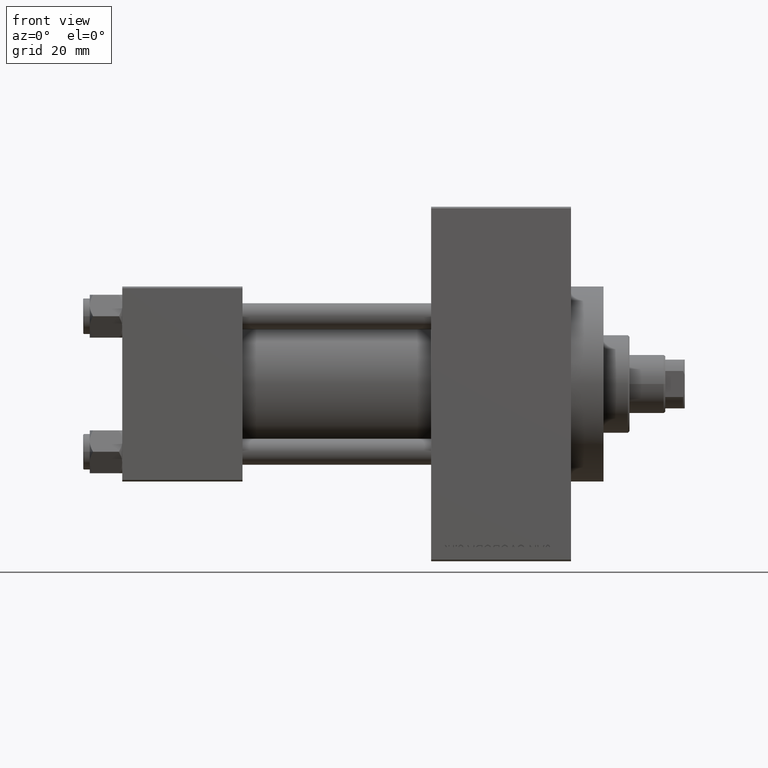
[diagram: clean part render]
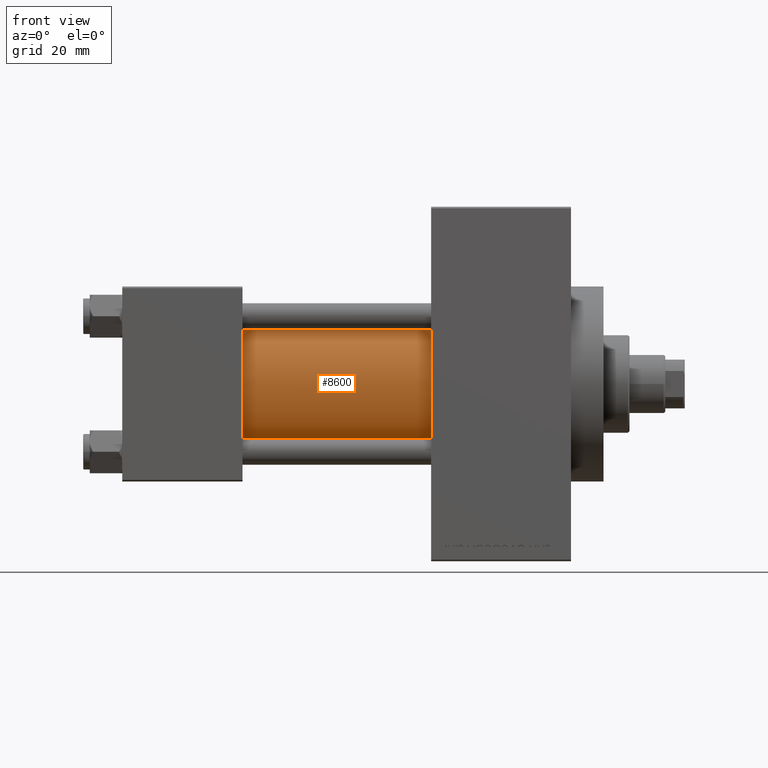
[diagram: same view with one face highlighted and labeled with its STEP entity id]
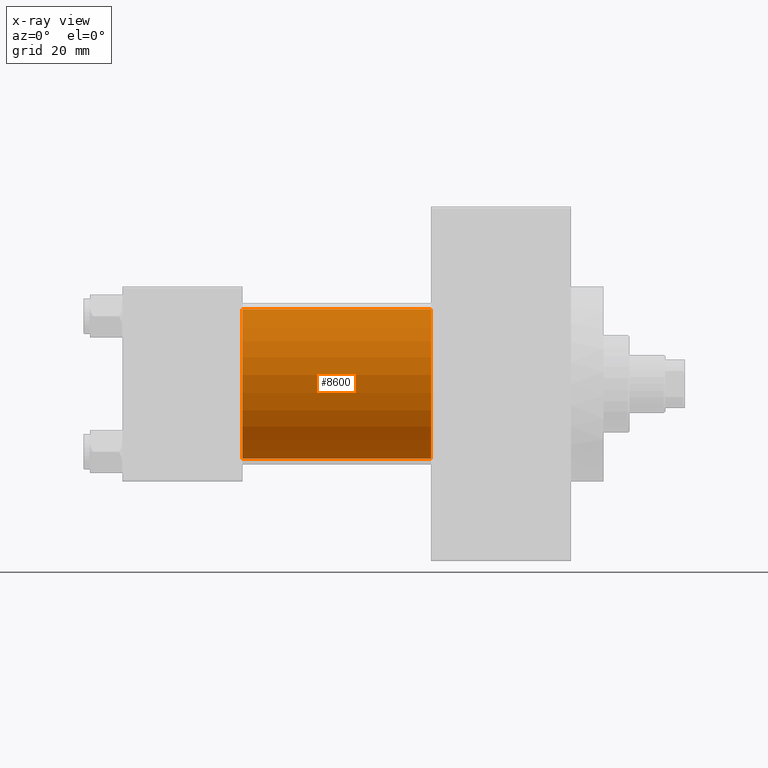
[diagram: x-ray of the same camera — body ghosted, the highlighted face saturated]
A machine part, front view. The second image highlights one B-rep face of the part: STEP entity #8600.
The next image is the same camera in x-ray: the body ghosted, the highlighted face saturated — about 0% of this face is hidden behind the body in this view.
In plain terms, the highlighted cylindrical surface (partial cylindrical patch) has radius 23 mm, axis along (-1, -0, -0).
Its self-contained STEP definition (entity closure, byte-faithful):
#312 = AXIS2_PLACEMENT_3D ( 'NONE', #23152, #4201, #19429 ) ;
#1035 = EDGE_CURVE ( 'NONE', #48491, #15989, #10697, .T. ) ;
#1963 = CARTESIAN_POINT ( 'NONE',  ( 37.00000000000000000, 2.146024240737012665E-16, -23.00000000000000000 ) ) ;
#2677 = FACE_OUTER_BOUND ( 'NONE', #3761, .T. ) ;
#3515 = ORIENTED_EDGE ( 'NONE', *, *, #17878, .F. ) ;
#3761 = EDGE_LOOP ( 'NONE', ( #33979, #3515, #22070, #25570 ) ) ;
#4201 = DIRECTION ( 'NONE',  ( 1.000000000000000000, -0.000000000000000000, 0.000000000000000000 ) ) ;
#6435 = LINE ( 'NONE', #29353, #11618 ) ;
#6522 = DIRECTION ( 'NONE',  ( 0.000000000000000000, 0.000000000000000000, -1.000000000000000000 ) ) ;
#8462 = CARTESIAN_POINT ( 'NONE',  ( 95.00000000000000000, -2.602085213965210642E-15, 23.00000000000000000 ) ) ;
#8600 = ADVANCED_FACE ( 'NONE', ( #2677 ), #48278, .T. ) ;
#9410 = DIRECTION ( 'NONE',  ( -1.000000000000000000, -0.000000000000000000, -0.000000000000000000 ) ) ;
#10697 = CIRCLE ( 'NONE', #312, 23.00000000000000000 ) ;
#11618 = VECTOR ( 'NONE', #47569, 1000.000000000000000 ) ;
#14154 = CARTESIAN_POINT ( 'NONE',  ( 95.00000000000000000, -2.602085213965210642E-15, 0.000000000000000000 ) ) ;
#14644 = DIRECTION ( 'NONE',  ( 0.000000000000000000, 0.000000000000000000, 1.000000000000000000 ) ) ;
#15237 = EDGE_CURVE ( 'NONE', #40613, #15989, #6435, .T. ) ;
#15989 = VERTEX_POINT ( 'NONE', #1963 ) ;
#17878 = EDGE_CURVE ( 'NONE', #19805, #40613, #19708, .T. ) ;
#18065 = CARTESIAN_POINT ( 'NONE',  ( 95.00000000000000000, 2.146024240737012665E-16, -23.00000000000000000 ) ) ;
#19429 = DIRECTION ( 'NONE',  ( 0.000000000000000000, 0.000000000000000000, 1.000000000000000000 ) ) ;
#19708 = CIRCLE ( 'NONE', #25250, 23.00000000000000000 ) ;
#19805 = VERTEX_POINT ( 'NONE', #8462 ) ;
#22070 = ORIENTED_EDGE ( 'NONE', *, *, #34525, .T. ) ;
#23152 = CARTESIAN_POINT ( 'NONE',  ( 37.00000000000000000, -2.602085213965210642E-15, 0.000000000000000000 ) ) ;
#25250 = AXIS2_PLACEMENT_3D ( 'NONE', #44386, #36411, #6522 ) ;
#25570 = ORIENTED_EDGE ( 'NONE', *, *, #1035, .T. ) ;
#27830 = LINE ( 'NONE', #43527, #47188 ) ;
#29353 = CARTESIAN_POINT ( 'NONE',  ( 95.00000000000000000, 2.146024240737012665E-16, -23.00000000000000000 ) ) ;
#33785 = DIRECTION ( 'NONE',  ( -1.000000000000000000, -0.000000000000000000, -0.000000000000000000 ) ) ;
#33979 = ORIENTED_EDGE ( 'NONE', *, *, #15237, .F. ) ;
#34525 = EDGE_CURVE ( 'NONE', #19805, #48491, #27830, .T. ) ;
#36411 = DIRECTION ( 'NONE',  ( 1.000000000000000000, 0.000000000000000000, 0.000000000000000000 ) ) ;
#40613 = VERTEX_POINT ( 'NONE', #18065 ) ;
#41159 = CARTESIAN_POINT ( 'NONE',  ( 37.00000000000000000, -2.602085213965210642E-15, 23.00000000000000000 ) ) ;
#43527 = CARTESIAN_POINT ( 'NONE',  ( 95.00000000000000000, -2.602085213965210642E-15, 23.00000000000000000 ) ) ;
#44386 = CARTESIAN_POINT ( 'NONE',  ( 95.00000000000000000, -2.602085213965210642E-15, 0.000000000000000000 ) ) ;
#47188 = VECTOR ( 'NONE', #9410, 1000.000000000000000 ) ;
#47569 = DIRECTION ( 'NONE',  ( -1.000000000000000000, -0.000000000000000000, -0.000000000000000000 ) ) ;
#48217 = AXIS2_PLACEMENT_3D ( 'NONE', #14154, #33785, #14644 ) ;
#48278 = CYLINDRICAL_SURFACE ( 'NONE', #48217, 23.00000000000000000 ) ;
#48491 = VERTEX_POINT ( 'NONE', #41159 ) ;